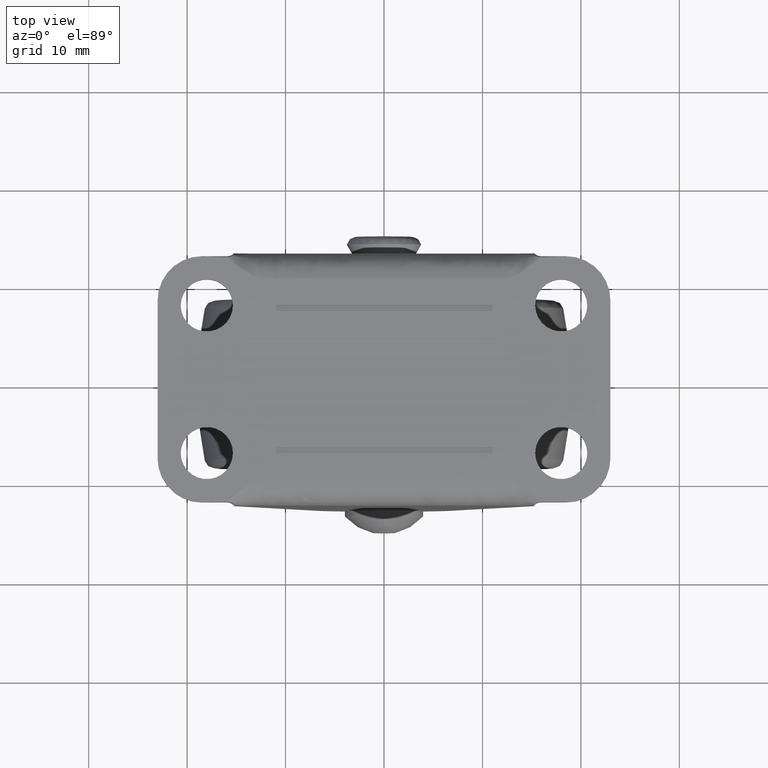
[diagram: clean part render]
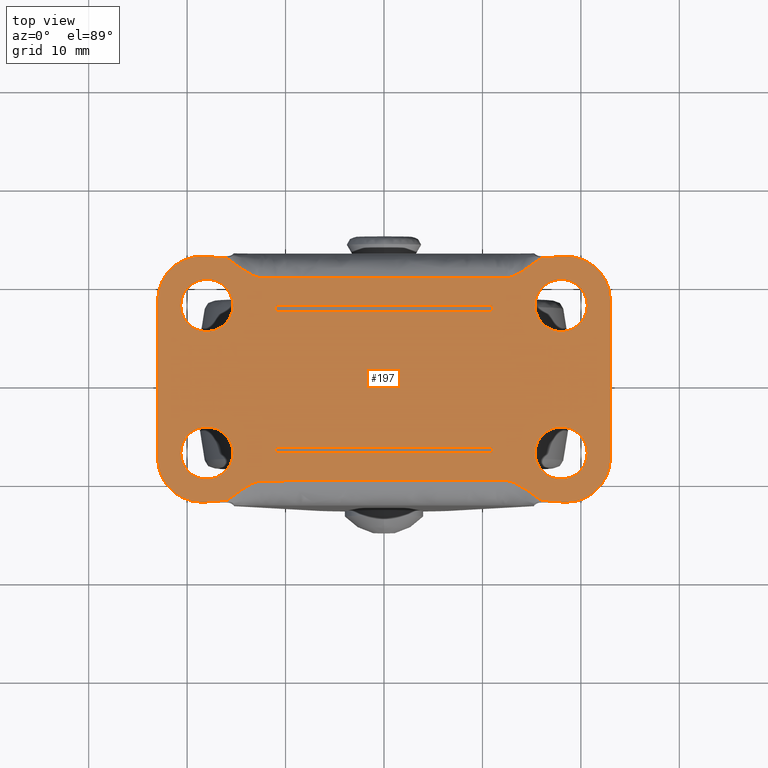
[diagram: same view with one face highlighted and labeled with its STEP entity id]
A machine part, top view. The second image highlights one B-rep face of the part: STEP entity #197.
In plain terms, the highlighted planar face has unit normal (0, 0, -1).
Its self-contained STEP definition (entity closure, byte-faithful):
#197=ADVANCED_FACE('',(#756,#757,#758,#759,#760,#761,#762),#755,.F.);
#755=PLANE('',#2130);
#756=FACE_OUTER_BOUND('',#2131,.T.);
#757=FACE_BOUND('',#2132,.T.);
#758=FACE_BOUND('',#2133,.T.);
#759=FACE_BOUND('',#2134,.T.);
#760=FACE_BOUND('',#2135,.T.);
#761=FACE_BOUND('',#2136,.T.);
#762=FACE_BOUND('',#2137,.T.);
#2127=CARTESIAN_POINT('',(-2.76000000000E+01,1.50000000000E+01,3.10000000000E+01));
#2128=DIRECTION('',(0.00000000000E+00,0.00000000000E+00,-1.00000000000E+00));
#2129=DIRECTION('',(1.00000000000E+00,0.00000000000E+00,0.00000000000E+00));
#2130=AXIS2_PLACEMENT_3D('',#2127,#2128,#2129);
#2131=EDGE_LOOP('',(#3152,#3153,#3154,#3155,#3156,#3157,#3158,#3159,#3160,#3161,#3162,#3163));
#2132=EDGE_LOOP('',(#3164,#3165,#3166,#3167));
#2133=EDGE_LOOP('',(#3168,#3169,#3170,#3171));
#2134=EDGE_LOOP('',(#3172,#3173));
#2135=EDGE_LOOP('',(#3174,#3175));
#2136=EDGE_LOOP('',(#3176,#3177));
#2137=EDGE_LOOP('',(#3178,#3179));
#3152=ORIENTED_EDGE('',*,*,#3587,.T.);
#3153=ORIENTED_EDGE('',*,*,#3588,.T.);
#3154=ORIENTED_EDGE('',*,*,#3576,.T.);
#3155=ORIENTED_EDGE('',*,*,#3574,.T.);
#3156=ORIENTED_EDGE('',*,*,#3572,.T.);
#3157=ORIENTED_EDGE('',*,*,#3578,.T.);
#3158=ORIENTED_EDGE('',*,*,#3488,.T.);
#3159=ORIENTED_EDGE('',*,*,#3589,.T.);
#3160=ORIENTED_EDGE('',*,*,#3590,.T.);
#3161=ORIENTED_EDGE('',*,*,#3591,.T.);
#3162=ORIENTED_EDGE('',*,*,#3592,.T.);
#3163=ORIENTED_EDGE('',*,*,#3593,.T.);
#3164=ORIENTED_EDGE('',*,*,#3594,.F.);
#3165=ORIENTED_EDGE('',*,*,#3595,.F.);
#3166=ORIENTED_EDGE('',*,*,#3596,.F.);
#3167=ORIENTED_EDGE('',*,*,#3597,.F.);
#3168=ORIENTED_EDGE('',*,*,#3598,.F.);
#3169=ORIENTED_EDGE('',*,*,#3599,.F.);
#3170=ORIENTED_EDGE('',*,*,#3600,.F.);
#3171=ORIENTED_EDGE('',*,*,#3601,.F.);
#3172=ORIENTED_EDGE('',*,*,#3602,.F.);
#3173=ORIENTED_EDGE('',*,*,#3603,.F.);
#3174=ORIENTED_EDGE('',*,*,#3604,.F.);
#3175=ORIENTED_EDGE('',*,*,#3605,.F.);
#3176=ORIENTED_EDGE('',*,*,#3606,.F.);
#3177=ORIENTED_EDGE('',*,*,#3607,.F.);
#3178=ORIENTED_EDGE('',*,*,#3608,.F.);
#3179=ORIENTED_EDGE('',*,*,#3609,.F.);
#3488=EDGE_CURVE('',#4037,#4065,#4072,.T.);
#3572=EDGE_CURVE('',#4644,#4631,#4645,.T.);
#3574=EDGE_CURVE('',#4657,#4644,#4658,.T.);
#3576=EDGE_CURVE('',#4670,#4657,#4671,.T.);
#3578=EDGE_CURVE('',#4631,#4037,#4683,.T.);
#3587=EDGE_CURVE('',#4741,#4525,#4742,.T.);
#3588=EDGE_CURVE('',#4525,#4670,#4748,.T.);
#3589=EDGE_CURVE('',#4065,#4754,#4755,.T.);
#3590=EDGE_CURVE('',#4754,#4761,#4762,.T.);
#3591=EDGE_CURVE('',#4761,#4768,#4769,.T.);
#3592=EDGE_CURVE('',#4768,#4775,#4776,.T.);
#3593=EDGE_CURVE('',#4775,#4741,#4782,.T.);
#3594=EDGE_CURVE('',#4788,#4789,#4790,.T.);
#3595=EDGE_CURVE('',#4796,#4788,#4797,.T.);
#3596=EDGE_CURVE('',#4803,#4796,#4804,.T.);
#3597=EDGE_CURVE('',#4789,#4803,#4810,.T.);
#3598=EDGE_CURVE('',#4816,#4817,#4818,.T.);
#3599=EDGE_CURVE('',#4824,#4816,#4825,.T.);
#3600=EDGE_CURVE('',#4831,#4824,#4832,.T.);
#3601=EDGE_CURVE('',#4817,#4831,#4838,.T.);
#3602=EDGE_CURVE('',#4844,#4845,#4846,.T.);
#3603=EDGE_CURVE('',#4845,#4844,#4852,.T.);
#3604=EDGE_CURVE('',#4858,#4859,#4860,.T.);
#3605=EDGE_CURVE('',#4859,#4858,#4866,.T.);
#3606=EDGE_CURVE('',#4872,#4873,#4874,.T.);
#3607=EDGE_CURVE('',#4873,#4872,#4880,.T.);
#3608=EDGE_CURVE('',#4886,#4887,#4888,.T.);
#3609=EDGE_CURVE('',#4887,#4886,#4894,.T.);
#4037=VERTEX_POINT('',#5642);
#4065=VERTEX_POINT('',#5700);
#4072=(BOUNDED_CURVE() B_SPLINE_CURVE(3,(#5719,#5720,#5721,#5722,#5723,#5724,#5725,#5726,#5727,#5728,#5729,#5730,#5731,#5732,#5733,#5734),.UNSPECIFIED.,.F.,.F.) B_SPLINE_CURVE_WITH_KNOTS((4,3,3,3,3,4),(-9.80097838358E-01,-9.59798994975E-01,-8.69346733668E-01,-1.30653266332E-01,-4.02010050251E-02,-1.95932419373E-02),.UNSPECIFIED.) CURVE() GEOMETRIC_REPRESENTATION_ITEM() RATIONAL_B_SPLINE_CURVE((1.00000000000E+00,1.00000000000E+00,1.00000000000E+00,1.00000000000E+00,1.00000000000E+00,1.00000000000E+00,1.00000000000E+00,1.00000000000E+00,1.00000000000E+00,1.00000000000E+00,1.00000000000E+00,1.00000000000E+00,1.00000000000E+00,1.00000000000E+00,1.00000000000E+00,1.00000000000E+00)) REPRESENTATION_ITEM('') );
#4525=VERTEX_POINT('',#6123);
#4631=VERTEX_POINT('',#6230);
#4644=VERTEX_POINT('',#6241);
#4645=CIRCLE('',#6245,4.50000000000E+00);
#4657=VERTEX_POINT('',#6249);
#4658=LINE('',#6250,#6251);
#4670=VERTEX_POINT('',#6256);
#4671=CIRCLE('',#6260,4.50000000000E+00);
#4683=(BOUNDED_CURVE() B_SPLINE_CURVE(3,(#6264,#6265,#6266,#6267,#6268,#6269,#6270),.UNSPECIFIED.,.F.,.F.) B_SPLINE_CURVE_WITH_KNOTS((4,3,4),(-1.00000000000E+00,-5.00000000000E-01,-0.00000000000E+00),.UNSPECIFIED.) CURVE() GEOMETRIC_REPRESENTATION_ITEM() RATIONAL_B_SPLINE_CURVE((1.00000000000E+00,1.00000000000E+00,1.00000000000E+00,1.00000000000E+00,1.00000000000E+00,1.00000000000E+00,1.00000000000E+00)) REPRESENTATION_ITEM('') );
#4741=VERTEX_POINT('',#6323);
#4742=(BOUNDED_CURVE() B_SPLINE_CURVE(3,(#6324,#6325,#6326,#6327,#6328,#6329,#6330,#6331,#6332,#6333,#6334,#6335,#6336,#6337,#6338,#6339),.UNSPECIFIED.,.F.,.F.) B_SPLINE_CURVE_WITH_KNOTS((4,3,3,3,3,4),(-9.80097838358E-01,-9.59798994975E-01,-8.69346733668E-01,-1.30653266332E-01,-4.02010050251E-02,-1.95932419373E-02),.UNSPECIFIED.) CURVE() GEOMETRIC_REPRESENTATION_ITEM() RATIONAL_B_SPLINE_CURVE((1.00000000000E+00,1.00000000000E+00,1.00000000000E+00,1.00000000000E+00,1.00000000000E+00,1.00000000000E+00,1.00000000000E+00,1.00000000000E+00,1.00000000000E+00,1.00000000000E+00,1.00000000000E+00,1.00000000000E+00,1.00000000000E+00,1.00000000000E+00,1.00000000000E+00,1.00000000000E+00)) REPRESENTATION_ITEM('') );
#4748=(BOUNDED_CURVE() B_SPLINE_CURVE(3,(#6340,#6341,#6342,#6343,#6344,#6345,#6346),.UNSPECIFIED.,.F.,.F.) B_SPLINE_CURVE_WITH_KNOTS((4,3,4),(-1.00000000000E+00,-5.00000000000E-01,-0.00000000000E+00),.UNSPECIFIED.) CURVE() GEOMETRIC_REPRESENTATION_ITEM() RATIONAL_B_SPLINE_CURVE((1.00000000000E+00,1.00000000000E+00,1.00000000000E+00,1.00000000000E+00,1.00000000000E+00,1.00000000000E+00,1.00000000000E+00)) REPRESENTATION_ITEM('') );
#4754=VERTEX_POINT('',#6347);
#4755=(BOUNDED_CURVE() B_SPLINE_CURVE(3,(#6348,#6349,#6350,#6351,#6352,#6353,#6354),.UNSPECIFIED.,.F.,.F.) B_SPLINE_CURVE_WITH_KNOTS((4,3,4),(-1.00000000000E+00,-5.00000000000E-01,-0.00000000000E+00),.UNSPECIFIED.) CURVE() GEOMETRIC_REPRESENTATION_ITEM() RATIONAL_B_SPLINE_CURVE((1.00000000000E+00,1.00000000000E+00,1.00000000000E+00,1.00000000000E+00,1.00000000000E+00,1.00000000000E+00,1.00000000000E+00)) REPRESENTATION_ITEM('') );
#4761=VERTEX_POINT('',#6355);
#4762=CIRCLE('',#6359,4.50000000000E+00);
#4768=VERTEX_POINT('',#6360);
#4769=LINE('',#6361,#6362);
#4775=VERTEX_POINT('',#6364);
#4776=CIRCLE('',#6368,4.50000000000E+00);
#4782=(BOUNDED_CURVE() B_SPLINE_CURVE(3,(#6369,#6370,#6371,#6372,#6373,#6374,#6375),.UNSPECIFIED.,.F.,.F.) B_SPLINE_CURVE_WITH_KNOTS((4,3,4),(-1.00000000000E+00,-5.00000000000E-01,-0.00000000000E+00),.UNSPECIFIED.) CURVE() GEOMETRIC_REPRESENTATION_ITEM() RATIONAL_B_SPLINE_CURVE((1.00000000000E+00,1.00000000000E+00,1.00000000000E+00,1.00000000000E+00,1.00000000000E+00,1.00000000000E+00,1.00000000000E+00)) REPRESENTATION_ITEM('') );
#4788=VERTEX_POINT('',#6376);
#4789=VERTEX_POINT('',#6377);
#4790=LINE('',#6378,#6379);
#4796=VERTEX_POINT('',#6381);
#4797=LINE('',#6382,#6383);
#4803=VERTEX_POINT('',#6385);
#4804=LINE('',#6386,#6387);
#4810=LINE('',#6389,#6390);
#4816=VERTEX_POINT('',#6392);
#4817=VERTEX_POINT('',#6393);
#4818=LINE('',#6394,#6395);
#4824=VERTEX_POINT('',#6397);
#4825=LINE('',#6398,#6399);
#4831=VERTEX_POINT('',#6401);
#4832=LINE('',#6402,#6403);
#4838=LINE('',#6405,#6406);
#4844=VERTEX_POINT('',#6408);
#4845=VERTEX_POINT('',#6409);
#4846=CIRCLE('',#6413,2.65000000000E+00);
#4852=CIRCLE('',#6417,2.65000000000E+00);
#4858=VERTEX_POINT('',#6418);
#4859=VERTEX_POINT('',#6419);
#4860=CIRCLE('',#6423,2.65000000000E+00);
#4866=CIRCLE('',#6427,2.65000000000E+00);
#4872=VERTEX_POINT('',#6428);
#4873=VERTEX_POINT('',#6429);
#4874=CIRCLE('',#6433,2.65000000000E+00);
#4880=CIRCLE('',#6437,2.65000000000E+00);
#4886=VERTEX_POINT('',#6438);
#4887=VERTEX_POINT('',#6439);
#4888=CIRCLE('',#6443,2.65000000000E+00);
#4894=CIRCLE('',#6447,2.65000000000E+00);
#5642=CARTESIAN_POINT('',(-1.59333828909E+01,-1.22999902532E+01,3.09999965536E+01));
#5700=CARTESIAN_POINT('',(1.59549510005E+01,-1.23046766229E+01,3.09999993316E+01));
#5719=CARTESIAN_POINT('',(-1.59333828909E+01,-1.22999902532E+01,3.09999965536E+01));
#5720=CARTESIAN_POINT('',(-1.56988299815E+01,-1.21366224861E+01,3.10000000000E+01));
#5721=CARTESIAN_POINT('',(-1.54744149907E+01,-1.19683112431E+01,3.10000000000E+01));
#5722=CARTESIAN_POINT('',(-1.52500000000E+01,-1.18000000000E+01,3.10000000000E+01));
#5723=CARTESIAN_POINT('',(-1.42500000000E+01,-1.10500000000E+01,3.10000000000E+01));
#5724=CARTESIAN_POINT('',(-1.32500000000E+01,-1.03000000000E+01,3.10000000000E+01));
#5725=CARTESIAN_POINT('',(-1.22500000000E+01,-1.03000000000E+01,3.10000000000E+01));
#5726=CARTESIAN_POINT('',(-4.08333333333E+00,-1.03000000000E+01,3.10000000000E+01));
#5727=CARTESIAN_POINT('',(4.08333333333E+00,-1.03000000000E+01,3.10000000000E+01));
#5728=CARTESIAN_POINT('',(1.22500000000E+01,-1.03000000000E+01,3.10000000000E+01));
#5729=CARTESIAN_POINT('',(1.32500000000E+01,-1.03000000000E+01,3.10000000000E+01));
#5730=CARTESIAN_POINT('',(1.42500000000E+01,-1.10500000000E+01,3.10000000000E+01));
#5731=CARTESIAN_POINT('',(1.52500000000E+01,-1.18000000000E+01,3.10000000000E+01));
#5732=CARTESIAN_POINT('',(1.54788557719E+01,-1.19716418289E+01,3.10000000000E+01));
#5733=CARTESIAN_POINT('',(1.57077115438E+01,-1.21432836578E+01,3.10000000000E+01));
#5734=CARTESIAN_POINT('',(1.59549510005E+01,-1.23046766229E+01,3.09999993316E+01));
#6123=CARTESIAN_POINT('',(-1.59549510005E+01,1.23046766229E+01,3.09999993316E+01));
#6230=CARTESIAN_POINT('',(-1.85000000000E+01,-1.25000000000E+01,3.10000000000E+01));
#6241=CARTESIAN_POINT('',(-2.30000000000E+01,-8.00000000000E+00,3.10000000000E+01));
#6242=CARTESIAN_POINT('',(-1.85000000000E+01,-8.00000000000E+00,3.10000000000E+01));
#6243=DIRECTION('',(0.00000000000E+00,-0.00000000000E+00,1.00000000000E+00));
#6244=DIRECTION('',(1.00000000000E+00,-0.00000000000E+00,-0.00000000000E+00));
#6245=AXIS2_PLACEMENT_3D('',#6242,#6243,#6244);
#6249=CARTESIAN_POINT('',(-2.30000000000E+01,8.00000000000E+00,3.10000000000E+01));
#6250=CARTESIAN_POINT('',(-2.30000000000E+01,8.00000000000E+00,3.10000000000E+01));
#6251=VECTOR('',#6252,1.60000000000E+01);
#6252=DIRECTION('',(0.00000000000E+00,-1.00000000000E+00,0.00000000000E+00));
#6256=CARTESIAN_POINT('',(-1.85000000000E+01,1.25000000000E+01,3.10000000000E+01));
#6257=CARTESIAN_POINT('',(-1.85000000000E+01,8.00000000000E+00,3.10000000000E+01));
#6258=DIRECTION('',(0.00000000000E+00,-0.00000000000E+00,1.00000000000E+00));
#6259=DIRECTION('',(1.00000000000E+00,-0.00000000000E+00,-0.00000000000E+00));
#6260=AXIS2_PLACEMENT_3D('',#6257,#6258,#6259);
#6264=CARTESIAN_POINT('',(-1.85000000000E+01,-1.25000000000E+01,3.10000000000E+01));
#6265=CARTESIAN_POINT('',(-1.80773571405E+01,-1.24666666667E+01,3.10000000000E+01));
#6266=CARTESIAN_POINT('',(-1.76547142810E+01,-1.24333333333E+01,3.10000000000E+01));
#6267=CARTESIAN_POINT('',(-1.72320714214E+01,-1.24000000000E+01,3.10000000000E+01));
#6268=CARTESIAN_POINT('',(-1.68094285619E+01,-1.23666666667E+01,3.10000000000E+01));
#6269=CARTESIAN_POINT('',(-1.63867857024E+01,-1.23000000000E+01,3.10000000000E+01));
#6270=CARTESIAN_POINT('',(-1.59333828909E+01,-1.22999902532E+01,3.09999965536E+01));
#6323=CARTESIAN_POINT('',(1.59505102193E+01,1.23009667055E+01,3.09999965536E+01));
#6324=CARTESIAN_POINT('',(1.59505102193E+01,1.23009667055E+01,3.09999965536E+01));
#6325=CARTESIAN_POINT('',(1.56988299815E+01,1.21366224861E+01,3.10000000000E+01));
#6326=CARTESIAN_POINT('',(1.54744149907E+01,1.19683112431E+01,3.10000000000E+01));
#6327=CARTESIAN_POINT('',(1.52500000000E+01,1.18000000000E+01,3.10000000000E+01));
#6328=CARTESIAN_POINT('',(1.42500000000E+01,1.10500000000E+01,3.10000000000E+01));
#6329=CARTESIAN_POINT('',(1.32500000000E+01,1.03000000000E+01,3.10000000000E+01));
#6330=CARTESIAN_POINT('',(1.22500000000E+01,1.03000000000E+01,3.10000000000E+01));
#6331=CARTESIAN_POINT('',(4.08333333333E+00,1.03000000000E+01,3.10000000000E+01));
#6332=CARTESIAN_POINT('',(-4.08333333333E+00,1.03000000000E+01,3.10000000000E+01));
#6333=CARTESIAN_POINT('',(-1.22500000000E+01,1.03000000000E+01,3.10000000000E+01));
#6334=CARTESIAN_POINT('',(-1.32500000000E+01,1.03000000000E+01,3.10000000000E+01));
#6335=CARTESIAN_POINT('',(-1.42500000000E+01,1.10500000000E+01,3.10000000000E+01));
#6336=CARTESIAN_POINT('',(-1.52500000000E+01,1.18000000000E+01,3.10000000000E+01));
#6337=CARTESIAN_POINT('',(-1.54788557719E+01,1.19716418289E+01,3.10000000000E+01));
#6338=CARTESIAN_POINT('',(-1.57077115438E+01,1.21432836578E+01,3.10000000000E+01));
#6339=CARTESIAN_POINT('',(-1.59549510005E+01,1.23046766229E+01,3.09999993316E+01));
#6340=CARTESIAN_POINT('',(-1.59549510005E+01,1.23046766229E+01,3.09999993316E+01));
#6341=CARTESIAN_POINT('',(-1.63867857024E+01,1.23000000000E+01,3.10000000000E+01));
#6342=CARTESIAN_POINT('',(-1.68094285619E+01,1.23666666667E+01,3.10000000000E+01));
#6343=CARTESIAN_POINT('',(-1.72320714214E+01,1.24000000000E+01,3.10000000000E+01));
#6344=CARTESIAN_POINT('',(-1.76547142810E+01,1.24333333333E+01,3.10000000000E+01));
#6345=CARTESIAN_POINT('',(-1.80773571405E+01,1.24666666667E+01,3.10000000000E+01));
#6346=CARTESIAN_POINT('',(-1.85000000000E+01,1.25000000000E+01,3.10000000000E+01));
#6347=CARTESIAN_POINT('',(1.85000000000E+01,-1.25000000000E+01,3.10000000000E+01));
#6348=CARTESIAN_POINT('',(1.59549510005E+01,-1.23046766229E+01,3.09999993316E+01));
#6349=CARTESIAN_POINT('',(1.63867857024E+01,-1.23000000000E+01,3.10000000000E+01));
#6350=CARTESIAN_POINT('',(1.68094285619E+01,-1.23666666667E+01,3.10000000000E+01));
#6351=CARTESIAN_POINT('',(1.72320714214E+01,-1.24000000000E+01,3.10000000000E+01));
#6352=CARTESIAN_POINT('',(1.76547142810E+01,-1.24333333333E+01,3.10000000000E+01));
#6353=CARTESIAN_POINT('',(1.80773571405E+01,-1.24666666667E+01,3.10000000000E+01));
#6354=CARTESIAN_POINT('',(1.85000000000E+01,-1.25000000000E+01,3.10000000000E+01));
#6355=CARTESIAN_POINT('',(2.30000000000E+01,-8.00000000000E+00,3.10000000000E+01));
#6356=CARTESIAN_POINT('',(1.85000000000E+01,-8.00000000000E+00,3.10000000000E+01));
#6357=DIRECTION('',(0.00000000000E+00,-0.00000000000E+00,1.00000000000E+00));
#6358=DIRECTION('',(1.00000000000E+00,-0.00000000000E+00,-0.00000000000E+00));
#6359=AXIS2_PLACEMENT_3D('',#6356,#6357,#6358);
#6360=CARTESIAN_POINT('',(2.30000000000E+01,8.00000000000E+00,3.10000000000E+01));
#6361=CARTESIAN_POINT('',(2.30000000000E+01,-8.00000000000E+00,3.10000000000E+01));
#6362=VECTOR('',#6363,1.60000000000E+01);
#6363=DIRECTION('',(0.00000000000E+00,1.00000000000E+00,0.00000000000E+00));
#6364=CARTESIAN_POINT('',(1.85000000000E+01,1.25000000000E+01,3.10000000000E+01));
#6365=CARTESIAN_POINT('',(1.85000000000E+01,8.00000000000E+00,3.10000000000E+01));
#6366=DIRECTION('',(0.00000000000E+00,-0.00000000000E+00,1.00000000000E+00));
#6367=DIRECTION('',(1.00000000000E+00,-0.00000000000E+00,-0.00000000000E+00));
#6368=AXIS2_PLACEMENT_3D('',#6365,#6366,#6367);
#6369=CARTESIAN_POINT('',(1.85000000000E+01,1.25000000000E+01,3.10000000000E+01));
#6370=CARTESIAN_POINT('',(1.80773571405E+01,1.24666666667E+01,3.10000000000E+01));
#6371=CARTESIAN_POINT('',(1.76547142810E+01,1.24333333333E+01,3.10000000000E+01));
#6372=CARTESIAN_POINT('',(1.72320714214E+01,1.24000000000E+01,3.10000000000E+01));
#6373=CARTESIAN_POINT('',(1.68094285619E+01,1.23666666667E+01,3.10000000000E+01));
#6374=CARTESIAN_POINT('',(1.63867857024E+01,1.23000000000E+01,3.10000000000E+01));
#6375=CARTESIAN_POINT('',(1.59505102193E+01,1.23009667055E+01,3.09999965536E+01));
#6376=CARTESIAN_POINT('',(1.10000000000E+01,-7.50000000000E+00,3.10000000000E+01));
#6377=CARTESIAN_POINT('',(1.10000000000E+01,-6.90000200000E+00,3.10000000000E+01));
#6378=CARTESIAN_POINT('',(1.10000000000E+01,-7.50000000000E+00,3.10000000000E+01));
#6379=VECTOR('',#6380,5.99998000000E-01);
#6380=DIRECTION('',(0.00000000000E+00,1.00000000000E+00,0.00000000000E+00));
#6381=CARTESIAN_POINT('',(-1.10000000000E+01,-7.50000000000E+00,3.10000000000E+01));
#6382=CARTESIAN_POINT('',(-1.10000000000E+01,-7.50000000000E+00,3.10000000000E+01));
#6383=VECTOR('',#6384,2.20000000000E+01);
#6384=DIRECTION('',(1.00000000000E+00,0.00000000000E+00,0.00000000000E+00));
#6385=CARTESIAN_POINT('',(-1.10000000000E+01,-6.90000200000E+00,3.10000000000E+01));
#6386=CARTESIAN_POINT('',(-1.10000000000E+01,-6.90000200000E+00,3.10000000000E+01));
#6387=VECTOR('',#6388,5.99998000000E-01);
#6388=DIRECTION('',(0.00000000000E+00,-1.00000000000E+00,0.00000000000E+00));
#6389=CARTESIAN_POINT('',(1.10000000000E+01,-6.90000200000E+00,3.10000000000E+01));
#6390=VECTOR('',#6391,2.20000000000E+01);
#6391=DIRECTION('',(-1.00000000000E+00,0.00000000000E+00,0.00000000000E+00));
#6392=CARTESIAN_POINT('',(-1.10000000000E+01,7.50000000000E+00,3.10000000000E+01));
#6393=CARTESIAN_POINT('',(-1.10000000000E+01,6.90000200000E+00,3.10000000000E+01));
#6394=CARTESIAN_POINT('',(-1.10000000000E+01,7.50000000000E+00,3.10000000000E+01));
#6395=VECTOR('',#6396,5.99998000000E-01);
#6396=DIRECTION('',(0.00000000000E+00,-1.00000000000E+00,0.00000000000E+00));
#6397=CARTESIAN_POINT('',(1.10000000000E+01,7.50000000000E+00,3.10000000000E+01));
#6398=CARTESIAN_POINT('',(1.10000000000E+01,7.50000000000E+00,3.10000000000E+01));
#6399=VECTOR('',#6400,2.20000000000E+01);
#6400=DIRECTION('',(-1.00000000000E+00,0.00000000000E+00,0.00000000000E+00));
#6401=CARTESIAN_POINT('',(1.10000000000E+01,6.90000200000E+00,3.10000000000E+01));
#6402=CARTESIAN_POINT('',(1.10000000000E+01,6.90000200000E+00,3.10000000000E+01));
#6403=VECTOR('',#6404,5.99998000000E-01);
#6404=DIRECTION('',(0.00000000000E+00,1.00000000000E+00,0.00000000000E+00));
#6405=CARTESIAN_POINT('',(-1.10000000000E+01,6.90000200000E+00,3.10000000000E+01));
#6406=VECTOR('',#6407,2.20000000000E+01);
#6407=DIRECTION('',(1.00000000000E+00,0.00000000000E+00,0.00000000000E+00));
#6408=CARTESIAN_POINT('',(2.06500000000E+01,-7.50000000000E+00,3.10000000000E+01));
#6409=CARTESIAN_POINT('',(1.53500000000E+01,-7.50000000000E+00,3.10000000000E+01));
#6410=CARTESIAN_POINT('',(1.80000000000E+01,-7.50000000000E+00,3.10000000000E+01));
#6411=DIRECTION('',(0.00000000000E+00,0.00000000000E+00,1.00000000000E+00));
#6412=DIRECTION('',(-1.00000000000E+00,-1.22460635382E-16,0.00000000000E+00));
#6413=AXIS2_PLACEMENT_3D('',#6410,#6411,#6412);
#6414=CARTESIAN_POINT('',(1.80000000000E+01,-7.50000000000E+00,3.10000000000E+01));
#6415=DIRECTION('',(0.00000000000E+00,0.00000000000E+00,1.00000000000E+00));
#6416=DIRECTION('',(-1.00000000000E+00,-1.22460635382E-16,0.00000000000E+00));
#6417=AXIS2_PLACEMENT_3D('',#6414,#6415,#6416);
#6418=CARTESIAN_POINT('',(2.06500000000E+01,7.50000000000E+00,3.10000000000E+01));
#6419=CARTESIAN_POINT('',(1.53500000000E+01,7.50000000000E+00,3.10000000000E+01));
#6420=CARTESIAN_POINT('',(1.80000000000E+01,7.50000000000E+00,3.10000000000E+01));
#6421=DIRECTION('',(0.00000000000E+00,0.00000000000E+00,1.00000000000E+00));
#6422=DIRECTION('',(-1.00000000000E+00,-1.22460635382E-16,0.00000000000E+00));
#6423=AXIS2_PLACEMENT_3D('',#6420,#6421,#6422);
#6424=CARTESIAN_POINT('',(1.80000000000E+01,7.50000000000E+00,3.10000000000E+01));
#6425=DIRECTION('',(0.00000000000E+00,0.00000000000E+00,1.00000000000E+00));
#6426=DIRECTION('',(-1.00000000000E+00,-1.22460635382E-16,0.00000000000E+00));
#6427=AXIS2_PLACEMENT_3D('',#6424,#6425,#6426);
#6428=CARTESIAN_POINT('',(-1.53500000000E+01,7.50000000000E+00,3.10000000000E+01));
#6429=CARTESIAN_POINT('',(-2.06500000000E+01,7.50000000000E+00,3.10000000000E+01));
#6430=CARTESIAN_POINT('',(-1.80000000000E+01,7.50000000000E+00,3.10000000000E+01));
#6431=DIRECTION('',(0.00000000000E+00,0.00000000000E+00,1.00000000000E+00));
#6432=DIRECTION('',(-1.00000000000E+00,-1.22460635382E-16,0.00000000000E+00));
#6433=AXIS2_PLACEMENT_3D('',#6430,#6431,#6432);
#6434=CARTESIAN_POINT('',(-1.80000000000E+01,7.50000000000E+00,3.10000000000E+01));
#6435=DIRECTION('',(0.00000000000E+00,0.00000000000E+00,1.00000000000E+00));
#6436=DIRECTION('',(-1.00000000000E+00,-1.22460635382E-16,0.00000000000E+00));
#6437=AXIS2_PLACEMENT_3D('',#6434,#6435,#6436);
#6438=CARTESIAN_POINT('',(-1.53500000000E+01,-7.50000000000E+00,3.10000000000E+01));
#6439=CARTESIAN_POINT('',(-2.06500000000E+01,-7.50000000000E+00,3.10000000000E+01));
#6440=CARTESIAN_POINT('',(-1.80000000000E+01,-7.50000000000E+00,3.10000000000E+01));
#6441=DIRECTION('',(0.00000000000E+00,0.00000000000E+00,1.00000000000E+00));
#6442=DIRECTION('',(-1.00000000000E+00,-1.22460635382E-16,0.00000000000E+00));
#6443=AXIS2_PLACEMENT_3D('',#6440,#6441,#6442);
#6444=CARTESIAN_POINT('',(-1.80000000000E+01,-7.50000000000E+00,3.10000000000E+01));
#6445=DIRECTION('',(0.00000000000E+00,0.00000000000E+00,1.00000000000E+00));
#6446=DIRECTION('',(-1.00000000000E+00,-1.22460635382E-16,0.00000000000E+00));
#6447=AXIS2_PLACEMENT_3D('',#6444,#6445,#6446);